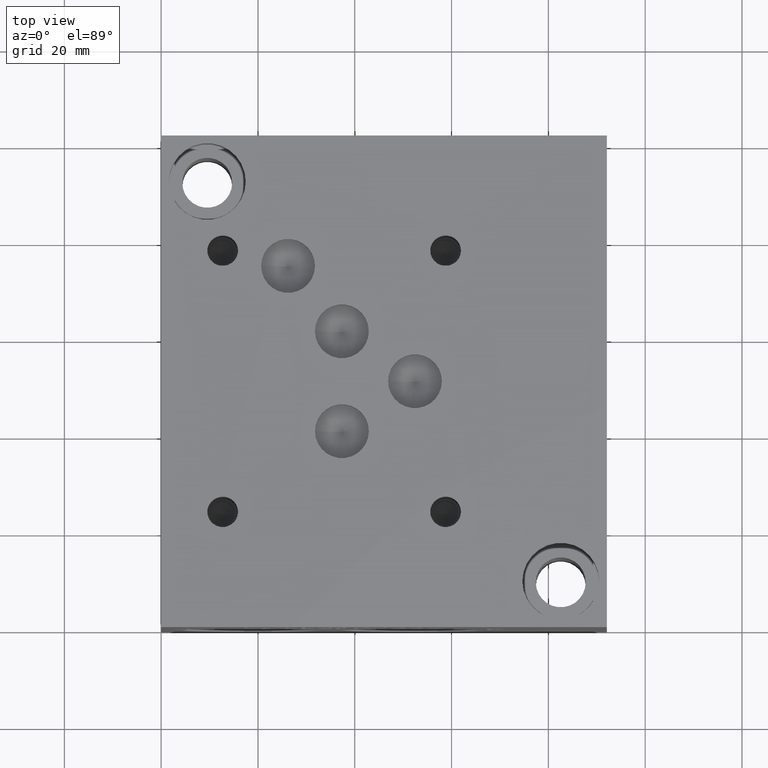
[diagram: clean part render]
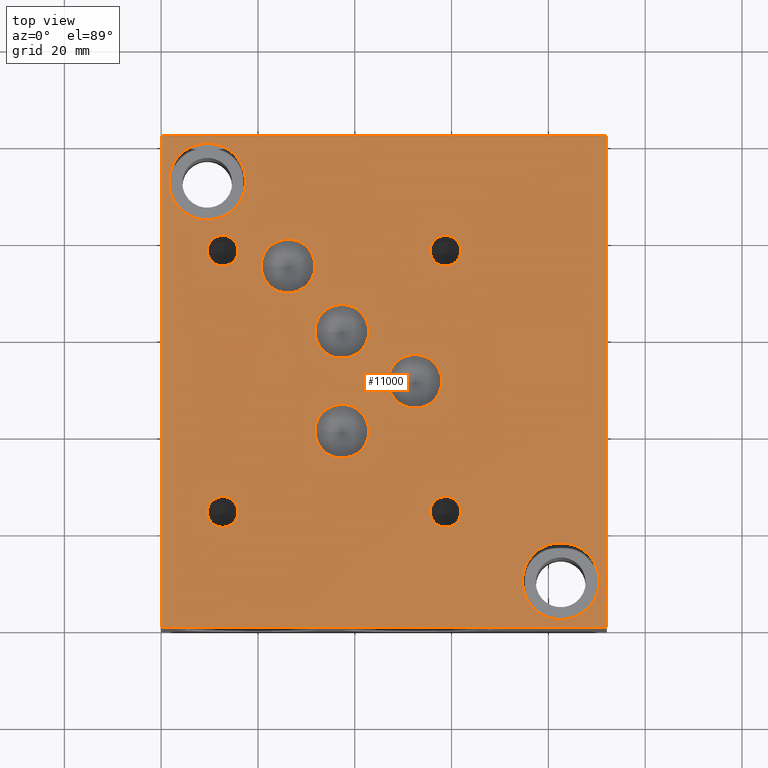
[diagram: same view with one face highlighted and labeled with its STEP entity id]
A machine part, top view. The second image highlights one B-rep face of the part: STEP entity #11000.
In plain terms, the highlighted planar face has unit normal (0, 0, 1).
Its self-contained STEP definition (entity closure, byte-faithful):
#139=FACE_BOUND('',#2234,.T.);
#140=FACE_BOUND('',#2235,.T.);
#141=FACE_BOUND('',#2236,.T.);
#142=FACE_BOUND('',#2237,.T.);
#143=FACE_BOUND('',#2238,.T.);
#144=FACE_BOUND('',#2239,.T.);
#145=FACE_BOUND('',#2240,.T.);
#146=FACE_BOUND('',#2241,.T.);
#147=FACE_BOUND('',#2242,.T.);
#148=FACE_BOUND('',#2243,.T.);
#460=PLANE('',#11627);
#1603=FACE_OUTER_BOUND('',#2233,.T.);
#2233=EDGE_LOOP('',(#10369,#10370,#10371,#10372));
#2234=EDGE_LOOP('',(#10373,#10374));
#2235=EDGE_LOOP('',(#10375,#10376));
#2236=EDGE_LOOP('',(#10377,#10378));
#2237=EDGE_LOOP('',(#10379,#10380));
#2238=EDGE_LOOP('',(#10381,#10382));
#2239=EDGE_LOOP('',(#10383,#10384));
#2240=EDGE_LOOP('',(#10385,#10386));
#2241=EDGE_LOOP('',(#10387,#10388));
#2242=EDGE_LOOP('',(#10389,#10390));
#2243=EDGE_LOOP('',(#10391,#10392));
#2702=CIRCLE('',#11513,5.5626);
#2703=CIRCLE('',#11514,5.5626);
#2706=CIRCLE('',#11519,5.5626);
#2707=CIRCLE('',#11520,5.5626);
#2710=CIRCLE('',#11525,5.5626);
#2711=CIRCLE('',#11526,5.5626);
#2714=CIRCLE('',#11531,5.5626);
#2715=CIRCLE('',#11532,5.5626);
#2721=CIRCLE('',#11541,3.175);
#2722=CIRCLE('',#11542,3.175);
#2728=CIRCLE('',#11552,3.175);
#2729=CIRCLE('',#11553,3.175);
#2735=CIRCLE('',#11563,3.175);
#2736=CIRCLE('',#11564,3.175);
#2742=CIRCLE('',#11574,3.175);
#2743=CIRCLE('',#11575,3.175);
#2747=CIRCLE('',#11582,7.9375);
#2748=CIRCLE('',#11583,7.9375);
#2752=CIRCLE('',#11590,7.9375);
#2753=CIRCLE('',#11591,7.9375);
#2875=LINE('',#14237,#3875);
#3249=LINE('',#17193,#4249);
#3771=LINE('',#19088,#4771);
#3773=LINE('',#19091,#4773);
#3875=VECTOR('',#11824,10.);
#4249=VECTOR('',#12392,10.);
#4771=VECTOR('',#13846,10.);
#4773=VECTOR('',#13850,10.);
#4866=VERTEX_POINT('',#14234);
#4867=VERTEX_POINT('',#14236);
#5288=VERTEX_POINT('',#17192);
#5733=VERTEX_POINT('',#18866);
#5734=VERTEX_POINT('',#18867);
#5738=VERTEX_POINT('',#18879);
#5739=VERTEX_POINT('',#18880);
#5743=VERTEX_POINT('',#18892);
#5744=VERTEX_POINT('',#18893);
#5748=VERTEX_POINT('',#18905);
#5749=VERTEX_POINT('',#18906);
#5756=VERTEX_POINT('',#18925);
#5757=VERTEX_POINT('',#18926);
#5764=VERTEX_POINT('',#18947);
#5765=VERTEX_POINT('',#18948);
#5772=VERTEX_POINT('',#18969);
#5773=VERTEX_POINT('',#18970);
#5780=VERTEX_POINT('',#18991);
#5781=VERTEX_POINT('',#18992);
#5785=VERTEX_POINT('',#19006);
#5786=VERTEX_POINT('',#19007);
#5790=VERTEX_POINT('',#19021);
#5791=VERTEX_POINT('',#19022);
#5812=VERTEX_POINT('',#19087);
#5943=EDGE_CURVE('',#4867,#4866,#2875,.T.);
#6576=EDGE_CURVE('',#5288,#4867,#3249,.T.);
#7237=EDGE_CURVE('',#5733,#5734,#2702,.T.);
#7238=EDGE_CURVE('',#5734,#5733,#2703,.T.);
#7243=EDGE_CURVE('',#5738,#5739,#2706,.T.);
#7244=EDGE_CURVE('',#5739,#5738,#2707,.T.);
#7249=EDGE_CURVE('',#5743,#5744,#2710,.T.);
#7250=EDGE_CURVE('',#5744,#5743,#2711,.T.);
#7255=EDGE_CURVE('',#5748,#5749,#2714,.T.);
#7256=EDGE_CURVE('',#5749,#5748,#2715,.T.);
#7264=EDGE_CURVE('',#5756,#5757,#2721,.T.);
#7265=EDGE_CURVE('',#5757,#5756,#2722,.T.);
#7274=EDGE_CURVE('',#5764,#5765,#2728,.T.);
#7275=EDGE_CURVE('',#5765,#5764,#2729,.T.);
#7284=EDGE_CURVE('',#5772,#5773,#2735,.T.);
#7285=EDGE_CURVE('',#5773,#5772,#2736,.T.);
#7294=EDGE_CURVE('',#5780,#5781,#2742,.T.);
#7295=EDGE_CURVE('',#5781,#5780,#2743,.T.);
#7301=EDGE_CURVE('',#5785,#5786,#2747,.T.);
#7302=EDGE_CURVE('',#5786,#5785,#2748,.T.);
#7308=EDGE_CURVE('',#5790,#5791,#2752,.T.);
#7309=EDGE_CURVE('',#5791,#5790,#2753,.T.);
#7339=EDGE_CURVE('',#5812,#5288,#3771,.T.);
#7341=EDGE_CURVE('',#4866,#5812,#3773,.T.);
#10369=ORIENTED_EDGE('',*,*,#6576,.T.);
#10370=ORIENTED_EDGE('',*,*,#5943,.T.);
#10371=ORIENTED_EDGE('',*,*,#7341,.T.);
#10372=ORIENTED_EDGE('',*,*,#7339,.T.);
#10373=ORIENTED_EDGE('',*,*,#7237,.T.);
#10374=ORIENTED_EDGE('',*,*,#7238,.T.);
#10375=ORIENTED_EDGE('',*,*,#7243,.T.);
#10376=ORIENTED_EDGE('',*,*,#7244,.T.);
#10377=ORIENTED_EDGE('',*,*,#7249,.T.);
#10378=ORIENTED_EDGE('',*,*,#7250,.T.);
#10379=ORIENTED_EDGE('',*,*,#7255,.T.);
#10380=ORIENTED_EDGE('',*,*,#7256,.T.);
#10381=ORIENTED_EDGE('',*,*,#7264,.T.);
#10382=ORIENTED_EDGE('',*,*,#7265,.T.);
#10383=ORIENTED_EDGE('',*,*,#7274,.T.);
#10384=ORIENTED_EDGE('',*,*,#7275,.T.);
#10385=ORIENTED_EDGE('',*,*,#7284,.T.);
#10386=ORIENTED_EDGE('',*,*,#7285,.T.);
#10387=ORIENTED_EDGE('',*,*,#7294,.T.);
#10388=ORIENTED_EDGE('',*,*,#7295,.T.);
#10389=ORIENTED_EDGE('',*,*,#7301,.T.);
#10390=ORIENTED_EDGE('',*,*,#7302,.T.);
#10391=ORIENTED_EDGE('',*,*,#7308,.T.);
#10392=ORIENTED_EDGE('',*,*,#7309,.T.);
#11000=ADVANCED_FACE('',(#1603,#139,#140,#141,#142,#143,#144,#145,#146,
#147,#148),#460,.T.);
#11513=AXIS2_PLACEMENT_3D('',#18868,#13592,#13593);
#11514=AXIS2_PLACEMENT_3D('',#18869,#13594,#13595);
#11519=AXIS2_PLACEMENT_3D('',#18881,#13606,#13607);
#11520=AXIS2_PLACEMENT_3D('',#18882,#13608,#13609);
#11525=AXIS2_PLACEMENT_3D('',#18894,#13620,#13621);
#11526=AXIS2_PLACEMENT_3D('',#18895,#13622,#13623);
#11531=AXIS2_PLACEMENT_3D('',#18907,#13634,#13635);
#11532=AXIS2_PLACEMENT_3D('',#18908,#13636,#13637);
#11541=AXIS2_PLACEMENT_3D('',#18927,#13656,#13657);
#11542=AXIS2_PLACEMENT_3D('',#18928,#13658,#13659);
#11552=AXIS2_PLACEMENT_3D('',#18949,#13681,#13682);
#11553=AXIS2_PLACEMENT_3D('',#18950,#13683,#13684);
#11563=AXIS2_PLACEMENT_3D('',#18971,#13706,#13707);
#11564=AXIS2_PLACEMENT_3D('',#18972,#13708,#13709);
#11574=AXIS2_PLACEMENT_3D('',#18993,#13731,#13732);
#11575=AXIS2_PLACEMENT_3D('',#18994,#13733,#13734);
#11582=AXIS2_PLACEMENT_3D('',#19008,#13749,#13750);
#11583=AXIS2_PLACEMENT_3D('',#19009,#13751,#13752);
#11590=AXIS2_PLACEMENT_3D('',#19023,#13767,#13768);
#11591=AXIS2_PLACEMENT_3D('',#19024,#13769,#13770);
#11627=AXIS2_PLACEMENT_3D('',#19093,#13853,#13854);
#11824=DIRECTION('',(0.,1.,0.));
#12392=DIRECTION('',(1.,0.,0.));
#13592=DIRECTION('center_axis',(0.,0.,-1.));
#13593=DIRECTION('ref_axis',(1.,0.,0.));
#13594=DIRECTION('center_axis',(0.,0.,-1.));
#13595=DIRECTION('ref_axis',(1.,0.,0.));
#13606=DIRECTION('center_axis',(0.,0.,-1.));
#13607=DIRECTION('ref_axis',(1.,0.,0.));
#13608=DIRECTION('center_axis',(0.,0.,-1.));
#13609=DIRECTION('ref_axis',(1.,0.,0.));
#13620=DIRECTION('center_axis',(0.,0.,-1.));
#13621=DIRECTION('ref_axis',(1.,0.,0.));
#13622=DIRECTION('center_axis',(0.,0.,-1.));
#13623=DIRECTION('ref_axis',(1.,0.,0.));
#13634=DIRECTION('center_axis',(0.,0.,-1.));
#13635=DIRECTION('ref_axis',(1.,0.,0.));
#13636=DIRECTION('center_axis',(0.,0.,-1.));
#13637=DIRECTION('ref_axis',(1.,0.,0.));
#13656=DIRECTION('center_axis',(0.,0.,-1.));
#13657=DIRECTION('ref_axis',(1.,0.,0.));
#13658=DIRECTION('center_axis',(0.,0.,-1.));
#13659=DIRECTION('ref_axis',(1.,0.,0.));
#13681=DIRECTION('center_axis',(0.,0.,-1.));
#13682=DIRECTION('ref_axis',(1.,0.,0.));
#13683=DIRECTION('center_axis',(0.,0.,-1.));
#13684=DIRECTION('ref_axis',(1.,0.,0.));
#13706=DIRECTION('center_axis',(0.,0.,-1.));
#13707=DIRECTION('ref_axis',(1.,0.,0.));
#13708=DIRECTION('center_axis',(0.,0.,-1.));
#13709=DIRECTION('ref_axis',(1.,0.,0.));
#13731=DIRECTION('center_axis',(0.,0.,-1.));
#13732=DIRECTION('ref_axis',(1.,0.,0.));
#13733=DIRECTION('center_axis',(0.,0.,-1.));
#13734=DIRECTION('ref_axis',(1.,0.,0.));
#13749=DIRECTION('center_axis',(0.,0.,-1.));
#13750=DIRECTION('ref_axis',(1.,0.,0.));
#13751=DIRECTION('center_axis',(0.,0.,-1.));
#13752=DIRECTION('ref_axis',(1.,0.,0.));
#13767=DIRECTION('center_axis',(0.,0.,-1.));
#13768=DIRECTION('ref_axis',(1.,0.,0.));
#13769=DIRECTION('center_axis',(0.,0.,-1.));
#13770=DIRECTION('ref_axis',(1.,0.,0.));
#13846=DIRECTION('',(0.,-1.,0.));
#13850=DIRECTION('',(-1.,0.,0.));
#13853=DIRECTION('center_axis',(0.,0.,1.));
#13854=DIRECTION('ref_axis',(1.,0.,0.));
#14234=CARTESIAN_POINT('',(92.075,101.6,63.5));
#14236=CARTESIAN_POINT('',(92.075,0.,63.5));
#14237=CARTESIAN_POINT('',(92.075,0.,63.5));
#17192=CARTESIAN_POINT('',(0.,0.,63.5));
#17193=CARTESIAN_POINT('',(0.,0.,63.5));
#18866=CARTESIAN_POINT('',(42.8879,61.11748,63.5));
#18867=CARTESIAN_POINT('',(31.7627,61.11748,63.5));
#18868=CARTESIAN_POINT('Origin',(37.3253,61.11748,63.5));
#18869=CARTESIAN_POINT('Origin',(37.3253,61.11748,63.5));
#18879=CARTESIAN_POINT('',(57.9882,50.8,63.5));
#18880=CARTESIAN_POINT('',(46.863,50.8,63.5));
#18881=CARTESIAN_POINT('Origin',(52.4256,50.8,63.5));
#18882=CARTESIAN_POINT('Origin',(52.4256,50.8,63.5));
#18892=CARTESIAN_POINT('',(31.7754,74.6252,63.5));
#18893=CARTESIAN_POINT('',(20.6502,74.6252,63.5));
#18894=CARTESIAN_POINT('Origin',(26.2128,74.6252,63.5));
#18895=CARTESIAN_POINT('Origin',(26.2128,74.6252,63.5));
#18905=CARTESIAN_POINT('',(42.89298,40.48252,63.5));
#18906=CARTESIAN_POINT('',(31.76778,40.48252,63.5));
#18907=CARTESIAN_POINT('Origin',(37.33038,40.48252,63.5));
#18908=CARTESIAN_POINT('Origin',(37.33038,40.48252,63.5));
#18925=CARTESIAN_POINT('',(61.9252,23.8379,63.5));
#18926=CARTESIAN_POINT('',(55.5752,23.8379,63.5));
#18927=CARTESIAN_POINT('Origin',(58.7502,23.8379,63.5));
#18928=CARTESIAN_POINT('Origin',(58.7502,23.8379,63.5));
#18947=CARTESIAN_POINT('',(15.875,77.8002,63.5));
#18948=CARTESIAN_POINT('',(9.525,77.8002,63.5));
#18949=CARTESIAN_POINT('Origin',(12.7,77.8002,63.5));
#18950=CARTESIAN_POINT('Origin',(12.7,77.8002,63.5));
#18969=CARTESIAN_POINT('',(61.9252,77.8002,63.5));
#18970=CARTESIAN_POINT('',(55.5752,77.8002,63.5));
#18971=CARTESIAN_POINT('Origin',(58.7502,77.8002,63.5));
#18972=CARTESIAN_POINT('Origin',(58.7502,77.8002,63.5));
#18991=CARTESIAN_POINT('',(15.875,23.8252,63.5));
#18992=CARTESIAN_POINT('',(9.525,23.8252,63.5));
#18993=CARTESIAN_POINT('Origin',(12.7,23.8252,63.5));
#18994=CARTESIAN_POINT('Origin',(12.7,23.8252,63.5));
#19006=CARTESIAN_POINT('',(17.4625,92.075,63.5));
#19007=CARTESIAN_POINT('',(1.5875,92.075,63.5));
#19008=CARTESIAN_POINT('Origin',(9.525,92.075,63.5));
#19009=CARTESIAN_POINT('Origin',(9.525,92.075,63.5));
#19021=CARTESIAN_POINT('',(90.4875,9.525,63.5));
#19022=CARTESIAN_POINT('',(74.6125,9.525,63.5));
#19023=CARTESIAN_POINT('Origin',(82.55,9.525,63.5));
#19024=CARTESIAN_POINT('Origin',(82.55,9.525,63.5));
#19087=CARTESIAN_POINT('',(0.,101.6,63.5));
#19088=CARTESIAN_POINT('',(0.,101.6,63.5));
#19091=CARTESIAN_POINT('',(92.075,101.6,63.5));
#19093=CARTESIAN_POINT('Origin',(46.0375,50.8,63.5));